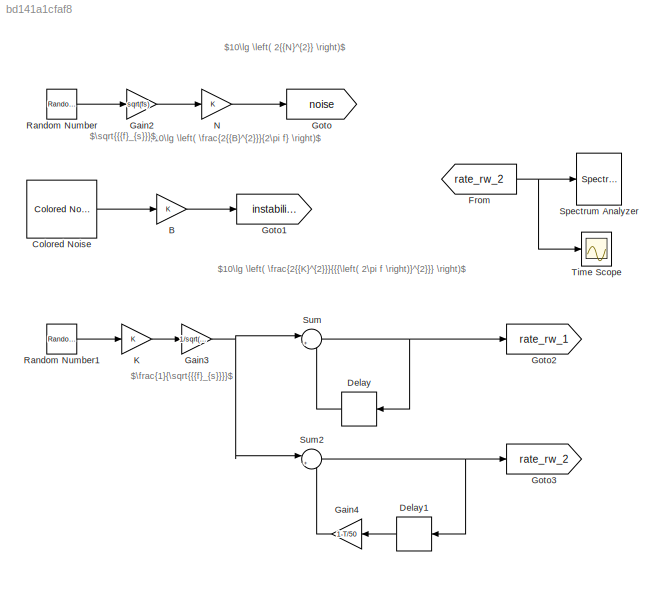
MODEL slx_bd141a1cfaf8
KIND model
CONFIG AbsTol = auto
CONFIG EnableMultiTasking = off
CONFIG FixedStep = auto
CONFIG InitFcn = fs = 100;\nT = 1/fs;
CONFIG MaxStep = auto
CONFIG MinStep = auto
CONFIG RelTol = 1e-3
CONFIG SampleTimeConstraint = Unconstrained
CONFIG Solver = FixedStepDiscrete
CONFIG SolverName = FixedStepDiscrete
CONFIG StartTime = 0.0
CONFIG StopTime = 600
BLOCK [Gain] B
  OutDataTypeStr = Inherit: Inherit via internal rule
  ParamDataTypeStr = Inherit: Inherit via internal rule
  SaturateOnIntegerOverflow = off
BLOCK [Reference] Colored Noise  REF=dspsrcs4/Colored Noise
  Ports = [0, 1]
  SourceBlock = dspsrcs4/Colored Noise
  SourceProductBaseCode = DS
  SourceProductName = DSP System Toolbox
  SourceType = dsp.simulink.ColoredNoise
BLOCK [Delay] Delay
  DelayLength = 1
  InitialCondition = 0
  InputPortMap = u0
  Ports = [1, 1]
BLOCK [Delay] Delay1
  DelayLength = 1
  InitialCondition = 0
  InputPortMap = u0
  Ports = [1, 1]
BLOCK [From] From
  GotoTag = rate_rw_2
BLOCK [Gain] Gain2
  Gain = sqrt(fs)
  OutDataTypeStr = Inherit: Inherit via internal rule
  ParamDataTypeStr = Inherit: Inherit via internal rule
  SaturateOnIntegerOverflow = off
BLOCK [Gain] Gain3
  Gain = 1/sqrt(fs)
  OutDataTypeStr = Inherit: Inherit via internal rule
  ParamDataTypeStr = Inherit: Inherit via internal rule
  SaturateOnIntegerOverflow = off
BLOCK [Gain] Gain4
  Gain = 1-T/50
  OutDataTypeStr = Inherit: Inherit via internal rule
  ParamDataTypeStr = Inherit: Inherit via internal rule
  SaturateOnIntegerOverflow = off
BLOCK [Goto] Goto
  GotoTag = noise
BLOCK [Goto] Goto1
  GotoTag = instability
BLOCK [Goto] Goto2
  GotoTag = rate_rw_1
BLOCK [Goto] Goto3
  GotoTag = rate_rw_2
BLOCK [Gain] K
  OutDataTypeStr = Inherit: Inherit via internal rule
  ParamDataTypeStr = Inherit: Inherit via internal rule
  SaturateOnIntegerOverflow = off
BLOCK [Gain] N
  OutDataTypeStr = Inherit: Inherit via internal rule
  ParamDataTypeStr = Inherit: Inherit via internal rule
  SaturateOnIntegerOverflow = off
BLOCK [RandomNumber] Random Number
  SampleTime = T
  Seed = randi(10000)
BLOCK [RandomNumber] Random Number1
  SampleTime = T
  Seed = randi(10000)
BLOCK [SpectrumAnalyzer] Spectrum Analyzer
  Ports = [1]
  ScopeSpecificationString = spbscopes.SpectrumAnalyzerBlockCfg('CurrentConfiguration', extmgr.ConfigurationSet(extmgr.Configuration('Core','General UI',true,'FigureColor',[1 1 1]),extmgr.Configuration('Core','Source UI',true),extmgr.Configuration('Sources','WiredSimulink',true),extmgr.Configuration('Sources','Simulink',false),extmgr.Configuration('Sources','File',false),extmgr.Configuration('Sources','Workspace',false),extmg...<+2534ch>
BLOCK [Sum] Sum
  IconShape = round
  InputSameDT = off
  Inputs = |++
  OutDataTypeStr = Inherit: Inherit via internal rule
  Ports = [2, 1]
  SaturateOnIntegerOverflow = off
BLOCK [Sum] Sum2
  IconShape = round
  InputSameDT = off
  Inputs = |++
  OutDataTypeStr = Inherit: Inherit via internal rule
  Ports = [2, 1]
  SaturateOnIntegerOverflow = off
BLOCK [Scope] Time Scope
  DefaultConfigurationName = spbscopes.TimeScopeBlockCfg
  Floating = off
  NumInputPorts = 1
  Ports = [1]
  ScopeSpecificationString = spbscopes.TimeScopeBlockCfg('CurrentConfiguration', extmgr.ConfigurationSet(extmgr.Configuration('Core','General UI',true,'FigureColor',[1 1 1]),extmgr.Configuration('Core','Source UI',true),extmgr.Configuration('Sources','WiredSimulink',true),extmgr.Configuration('Visuals','Time Domain',true,'DisplayPropertyDefaults',struct('MinYLimReal','-20.29232','MaxYLimReal','18.13811','YLabelReal','Amplitud...<+1551ch>
  UserDataPersistent = on
ANNOTATION (root): $10\lg \left( 2{{N}^{2}} \right)$
ANNOTATION (root): $10\lg \left( \frac{2{{B}^{2}}}{2\pi f} \right)$
ANNOTATION (root): $10\lg \left( \frac{2{{K}^{2}}}{{{\left( 2\pi f \right)}^{2}}} \right)$
ANNOTATION (root): $\frac{1}{\sqrt{{{f}_{s}}}}$
ANNOTATION (root): $\sqrt{{{f}_{s}}}$
LINE B:1 -> Goto1:1
LINE Colored Noise:1 -> B:1
LINE Delay1:1 -> Gain4:1
LINE Delay:1 -> Sum:2
NET From:1 -> Spectrum Analyzer:1, Time Scope:1
LINE Gain2:1 -> N:1
NET Gain3:1 -> Sum2:1, Sum:1
LINE Gain4:1 -> Sum2:2
LINE K:1 -> Gain3:1
LINE N:1 -> Goto:1
LINE Random Number1:1 -> K:1
LINE Random Number:1 -> Gain2:1
NET Sum2:1 -> Delay1:1, Goto3:1
NET Sum:1 -> Delay:1, Goto2:1
note: NET lines group one-source signal fan-out (src -> all destinations, sorted); 1:1 wires keep LINE
